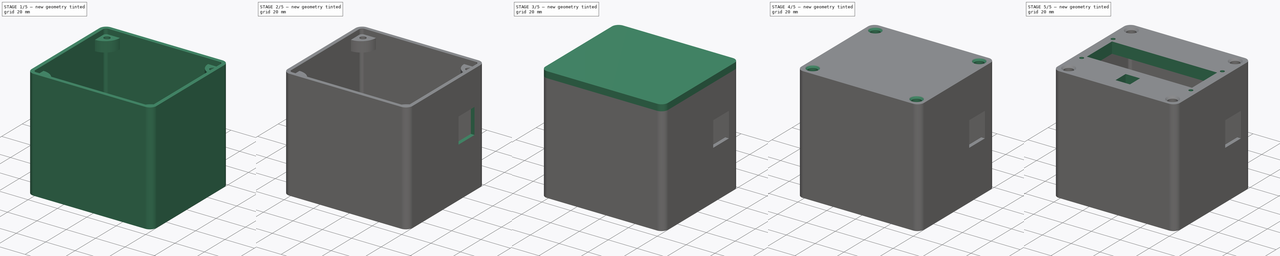
[diagram: build sequence overview — one tinted view per stage of 5, left to right]
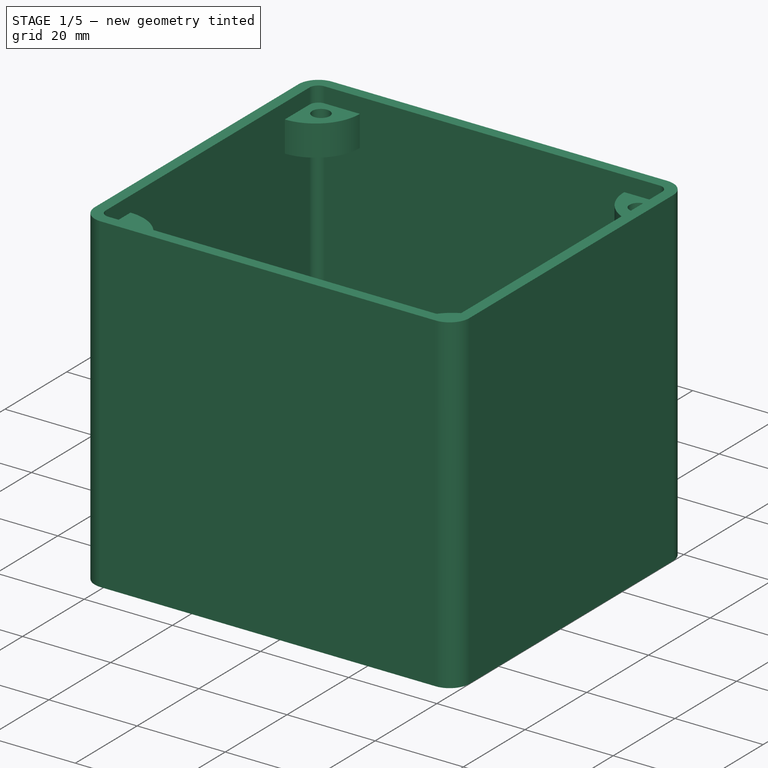
[diagram: stage 1 of 5 — iso view after this stage's code; geometry added in this stage tinted green]
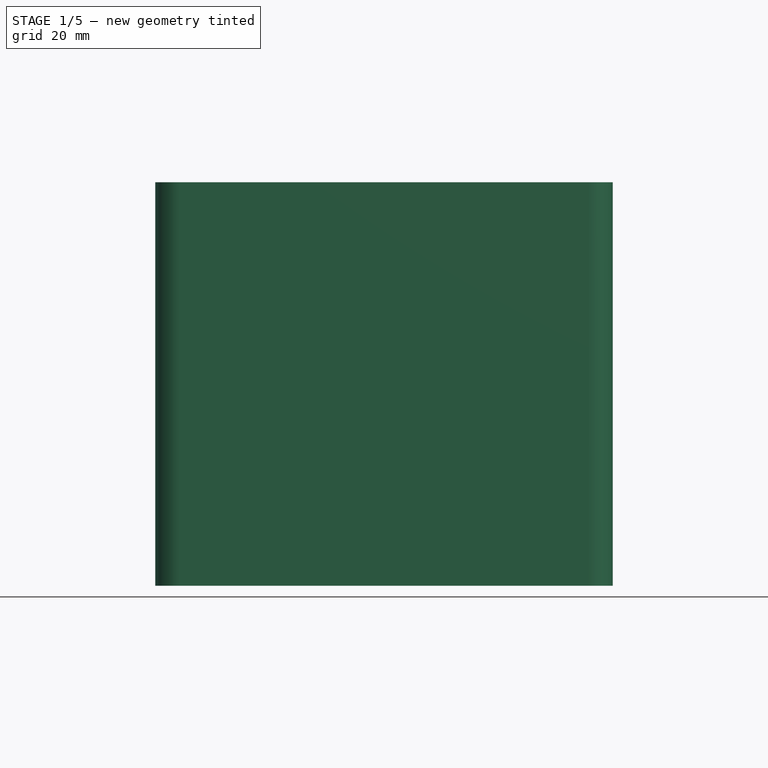
[diagram: stage 1 of 5 — front view after this stage's code; geometry added in this stage tinted green]
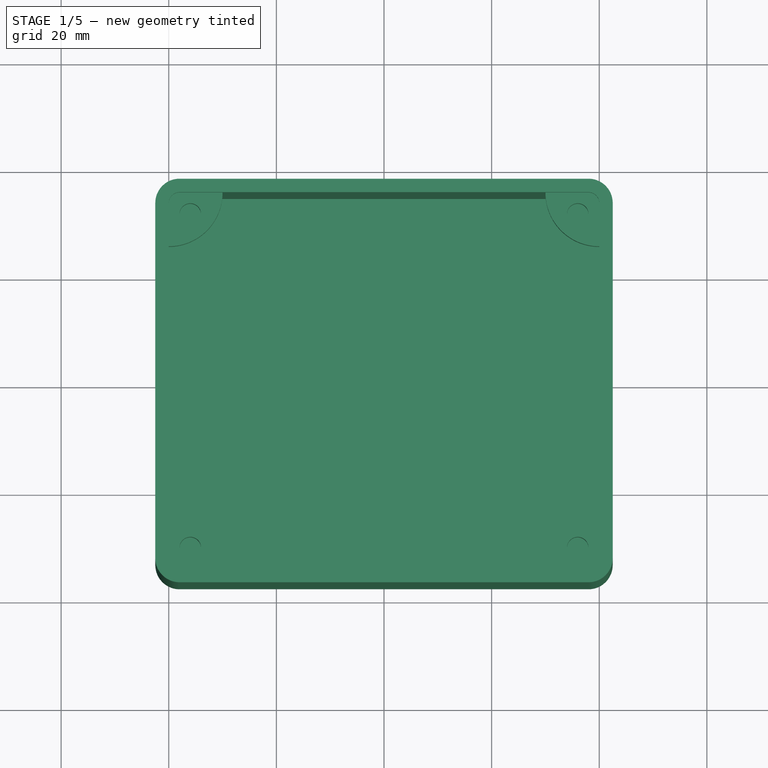
[diagram: stage 1 of 5 — top view after this stage's code; geometry added in this stage tinted green]
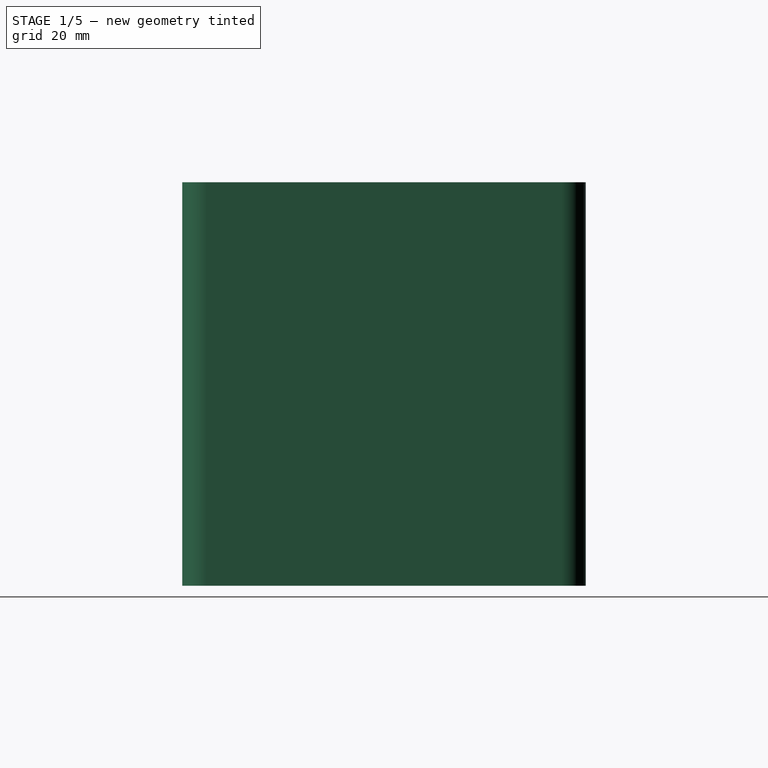
[diagram: stage 1 of 5 — right view after this stage's code; geometry added in this stage tinted green]
FCSTD DOCUMENT  (FreeCAD 0.19R24291 (Git))
Label: name_change
License: All rights reserved
LicenseURL: http://en.wikipedia.org/wiki/All_rights_reserved
objects: Sketcher::SketchObject×15, PartDesign::Pocket×10, App::MeasureDistance×9, PartDesign::Mirrored×6, PartDesign::Pad×4, PartDesign::MultiTransform×3, PartDesign::Body×2, Spreadsheet::Sheet×1, PartDesign::Chamfer×1, App::Part×1
note: 56 computed .brp shape members not serialized (recipe doc carries the construction recipe); baked Part::Feature solids carry a one-line shape summary decoded from their .brp

FEATURE [Sketcher::SketchObject] Sketch
  AttachmentOffset = pos=(0,0,-2.5) rot=(0,0,1;0rad)
  FullyConstrained = true
  MapMode = 5
  Placement = pos=(0,0,-2.5) rot=(0,0,1;0rad)
  Support = -> [XY_Plane001]
  expr: Constraints[17] = Spreadsheet.box_length
  expr: Constraints[18] = Spreadsheet.box_width
  expr: Constraints[16] = Spreadsheet.outside_radius
  expr: .AttachmentOffset.Base.z = -Spreadsheet.box_wall_thickness
  sketch-geometry (8):
    g0: LineSegment StartX=-38 StartY=37.5 StartZ=0 EndX=38 EndY=37.5 EndZ=0
    g1: LineSegment StartX=42.5 StartY=33 StartZ=0 EndX=42.5 EndY=-33 EndZ=0
    g2: LineSegment StartX=38 StartY=-37.5 StartZ=0 EndX=-38 EndY=-37.5 EndZ=0
    g3: LineSegment StartX=-42.5 StartY=-33 StartZ=0 EndX=-42.5 EndY=33 EndZ=0
    g4: ArcOfCircle CenterX=-38 CenterY=33 CenterZ=0 NormalX=0 NormalY=0 NormalZ=1 AngleXU=0 Radius=4.5 StartAngle=1.5708 EndAngle=3.14159
    g5: ArcOfCircle CenterX=-38 CenterY=-33 CenterZ=0 NormalX=0 NormalY=0 NormalZ=1 AngleXU=0 Radius=4.5 StartAngle=3.14159 EndAngle=4.71239
    g6: ArcOfCircle CenterX=38 CenterY=-33 CenterZ=0 NormalX=0 NormalY=0 NormalZ=1 AngleXU=0 Radius=4.5 StartAngle=4.71239 EndAngle=6.28319
    g7: ArcOfCircle CenterX=38 CenterY=33 CenterZ=0 NormalX=0 NormalY=0 NormalZ=1 AngleXU=0 Radius=4.5 StartAngle=-9e-16 EndAngle=1.5708
  constraints (19):
    c: Horizontal(g0)
    c: Horizontal(g2)
    c: Vertical(g1)
    c: Vertical(g3)
    c: Tangent(g0,g4) = 1.5708
    c: Tangent(g3,g4) = 1.5708
    c: Tangent(g2,g5) = 1.5708
    c: Tangent(g3,g5) = 1.5708
    c: Tangent(g1,g6) = 1.5708
    c: Tangent(g2,g6) = 1.5708
    c: Tangent(g0,g7) = 1.5708
    c: Tangent(g1,g7) = 1.5708
    c: Symmetric(g4,g6,g-1)
    c: Equal(g6,g7)
    c: Equal(g7,g4)
    c: Equal(g4,g5)
    c: Radius(g4) = 4.5
    c: DistanceX(g3,g1) = 85
    c: DistanceY(g2,g0) = 75
FEATURE [PartDesign::Pad] Pad
  Direction = (1,1,1)
  Length = 75
  Length2 = 100
  Profile = -> Sketch
  Type = 0
  expr: Length = Spreadsheet.box_height
FEATURE [Spreadsheet::Sheet] Spreadsheet
  cells = A2=box_length; B2(box_length)=85; A3=box_width; B3(box_width)=75; A4=box_height; B4(box_height)=75; A5=outside_radius; B5(outside_radius)==B7 + 2; C5=Calculated; A6=inside_radius; B6(inside_radius)==B5 - B7; C6=Calculated; A7=box_wall_thickness; B7(box_wall_thickness)=2.5; A8=hole_dia; B8(hole_dia)=4; A9=lug_height; B9(lug_height)==B4 - B7 * 2 - 63; C9=Calculated; A10=lug_radius; B10(lug_radius)==B8 * 2.5; C10=Calculated; A11=hole_center_length; B11(hole_center_length)==B13 / 2 - B8; C11=Calculated; A12=hole_center_width; B12(hole_center_width)==B14 / 2 - B8; C12=Calculated; A13=box_inside_length; B13(box_inside_length)==B2 - B7 * 2; C13=Calculated; A14=box_inside_width; B14(box_inside_width)==B3 - B7 * 2; C14=Calculated; A16=clearance_sides; B16(clearance_sides)=0.2; A17=clearance_hole; B17(clearance_hole)==B8 + 2; C17=Calculated; A18=lid_height; B18(lid_height)==B4 / 17; C18=Calculated; A20=lcd_length; B20(ldc_length)=72.89; A21=lcd_width; B21(lcd_width)=24.892; A22=lcd_hole_dia; B22(lcd_hole_dia)=2.7686; A23=lcd_hole_center_length; B23(lcd_hole_center_length)=37.8587; A24=lcd_hole_center_width; B24(lcd_hole_center_width)=15.5702; A26=buzzer_dia; B26(buzzer_dia)=12; A27=RJ11_length; B27(RJ11_length)=15.494; A28=RJ11_width; B28(RJ11_width)=17.272; A30=led_dia; B30(led_dia)=6; A31=pot_size ; B31(pot_size_)=10; B33=69x52
FEATURE [Sketcher::SketchObject] Sketch001
  FullyConstrained = true
  MapMode = 5
  Support = -> [XY_Plane001]
  expr: Constraints[16] = Spreadsheet.inside_radius
  expr: Constraints[17] = Spreadsheet.box_inside_length
  expr: Constraints[18] = Spreadsheet.box_inside_width
  sketch-geometry (8):
    g0: LineSegment StartX=-38 StartY=35 StartZ=0 EndX=38 EndY=35 EndZ=0
    g1: LineSegment StartX=40 StartY=33 StartZ=0 EndX=40 EndY=-33 EndZ=0
    g2: LineSegment StartX=38 StartY=-35 StartZ=0 EndX=-38 EndY=-35 EndZ=0
    g3: LineSegment StartX=-40 StartY=-33 StartZ=0 EndX=-40 EndY=33 EndZ=0
    g4: ArcOfCircle CenterX=-38 CenterY=33 CenterZ=0 NormalX=0 NormalY=0 NormalZ=1 AngleXU=0 Radius=2 StartAngle=1.5708 EndAngle=3.14159
    g5: ArcOfCircle CenterX=-38 CenterY=-33 CenterZ=0 NormalX=0 NormalY=0 NormalZ=1 AngleXU=0 Radius=2 StartAngle=3.14159 EndAngle=4.71239
    g6: ArcOfCircle CenterX=38 CenterY=-33 CenterZ=0 NormalX=0 NormalY=0 NormalZ=1 AngleXU=0 Radius=2 StartAngle=4.71239 EndAngle=6.28319
    g7: ArcOfCircle CenterX=38 CenterY=33 CenterZ=0 NormalX=0 NormalY=0 NormalZ=1 AngleXU=0 Radius=2 StartAngle=1e-15 EndAngle=1.5708
  constraints (19):
    c: Horizontal(g0)
    c: Horizontal(g2)
    c: Vertical(g1)
    c: Vertical(g3)
    c: Tangent(g0,g4) = 1.5708
    c: Tangent(g3,g4) = 1.5708
    c: Tangent(g2,g5) = 1.5708
    c: Tangent(g3,g5) = 1.5708
    c: Tangent(g1,g6) = 1.5708
    c: Tangent(g2,g6) = 1.5708
    c: Tangent(g0,g7) = 1.5708
    c: Tangent(g1,g7) = 1.5708
    c: Symmetric(g4,g6,g-1)
    c: Equal(g4,g5)
    c: Equal(g5,g6)
    c: Equal(g6,g7)
    c: Radius(g4) = 2
    c: DistanceX(g3,g1) = 80
    c: DistanceY(g2,g0) = 70
FEATURE [PartDesign::Pocket] Pocket
  BaseFeature = -> Pad
  Length = 5
  Length2 = 100
  Profile = -> Sketch001
  Reversed = true
  Type = 1
FEATURE [Sketcher::SketchObject] Sketch002
  FullyConstrained = false
  MapMode = 5
  Support = -> [XY_Plane001]
  expr: Constraints[5] = Spreadsheet.hole_dia
  expr: Constraints[6] = Spreadsheet.lug_radius
  sketch-geometry (4):
    g0: LineSegment StartX=-93.7587 StartY=49.1953 StartZ=0 EndX=-93.3239 EndY=59.1858 EndZ=0
    g1: LineSegment StartX=-93.7587 StartY=49.1953 StartZ=0 EndX=-93.7587 EndY=39.1953 EndZ=0
    g2: ArcOfCircle CenterX=-93.7587 CenterY=49.1953 CenterZ=0 NormalX=0 NormalY=0 NormalZ=1 AngleXU=0 Radius=10 StartAngle=4.71239 EndAngle=7.81049
    g3: Circle CenterX=-91.8972 CenterY=51.6629 CenterZ=0 NormalX=0 NormalY=0 NormalZ=1 AngleXU=0 Radius=2
  constraints (7):
    c: Coincident(g1,g0)
    c: Vertical(g1)
    c: Coincident(g2,g0)
    c: Coincident(g2,g0)
    c: Coincident(g2,g1)
    c: Diameter(g3) = 4
    c: Radius(g2) = 10
FEATURE [Sketcher::SketchObject] Sketch003
  AttachmentOffset = pos=(0,0,62) rot=(0,0,1;0rad)
  FullyConstrained = true
  MapMode = 5
  Placement = pos=(0,0,62) rot=(0,0,1;0rad)
  Support = -> [XY_Plane001]
  expr: Constraints[6] = Spreadsheet.hole_dia
  expr: Constraints[7] = Spreadsheet.lug_radius
  expr: Constraints[8] = Spreadsheet.hole_dia
  expr: Constraints[9] = Spreadsheet.hole_dia
  expr: Constraints[10] = Spreadsheet.hole_center_length
  expr: Constraints[11] = Spreadsheet.hole_center_width
  sketch-geometry (4):
    g0: LineSegment StartX=-40 StartY=35 StartZ=0 EndX=-30 EndY=35 EndZ=0
    g1: LineSegment StartX=-40 StartY=35 StartZ=0 EndX=-40 EndY=25 EndZ=0
    g2: ArcOfCircle CenterX=-40 CenterY=35 CenterZ=0 NormalX=0 NormalY=0 NormalZ=1 AngleXU=0 Radius=10 StartAngle=4.71239 EndAngle=6.28319
    g3: Circle CenterX=-36 CenterY=31 CenterZ=0 NormalX=0 NormalY=0 NormalZ=1 AngleXU=0 Radius=2
  constraints (12):
    c: Horizontal(g0)
    c: Coincident(g1,g0)
    c: Vertical(g1)
    c: Coincident(g2,g0)
    c: Coincident(g2,g0)
    c: Coincident(g2,g1)
    c: Diameter(g3) = 4
    c: Radius(g2) = 10
    c: DistanceY(g3,g0) = 4
    c: DistanceX(g0,g3) = 4
    c: DistanceX(g3,g-1) = 36
    c: DistanceY(g-1,g3) = 31
FEATURE [PartDesign::Pad] Pad001
  BaseFeature = -> Pocket
  Direction = (1,1,1)
  Length = 7
  Length2 = 100
  Profile = -> Sketch003
  Type = 0
  expr: Length = Spreadsheet.lug_height
FEATURE [PartDesign::Mirrored] Mirrored
  MirrorPlane = -> Sketch003 [V_Axis]
FEATURE [PartDesign::Mirrored] Mirrored001
  MirrorPlane = -> Sketch003 [H_Axis]
FEATURE [PartDesign::MultiTransform] MultiTransform
  BaseFeature = -> Pad001
  Originals = -> [Pad001]
  Transformations = -> [Mirrored,Mirrored001]
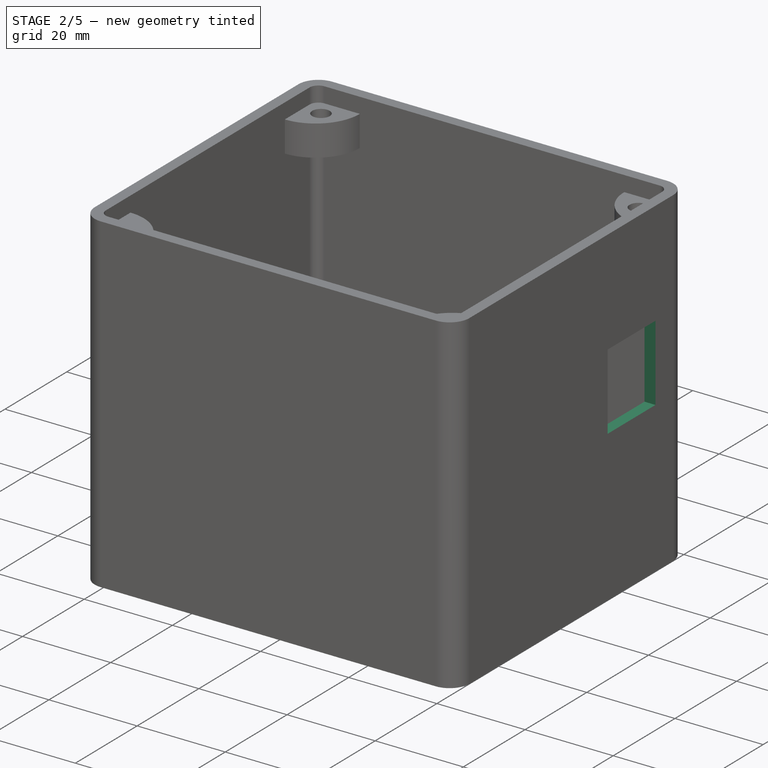
[diagram: stage 2 of 5 — iso view after this stage's code; geometry added in this stage tinted green]
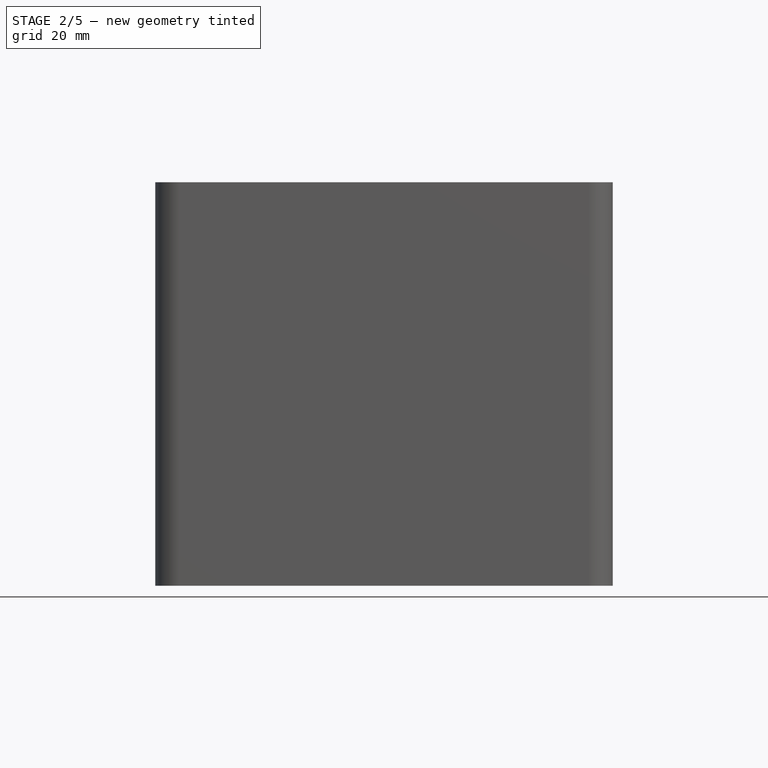
[diagram: stage 2 of 5 — front view after this stage's code; geometry added in this stage tinted green]
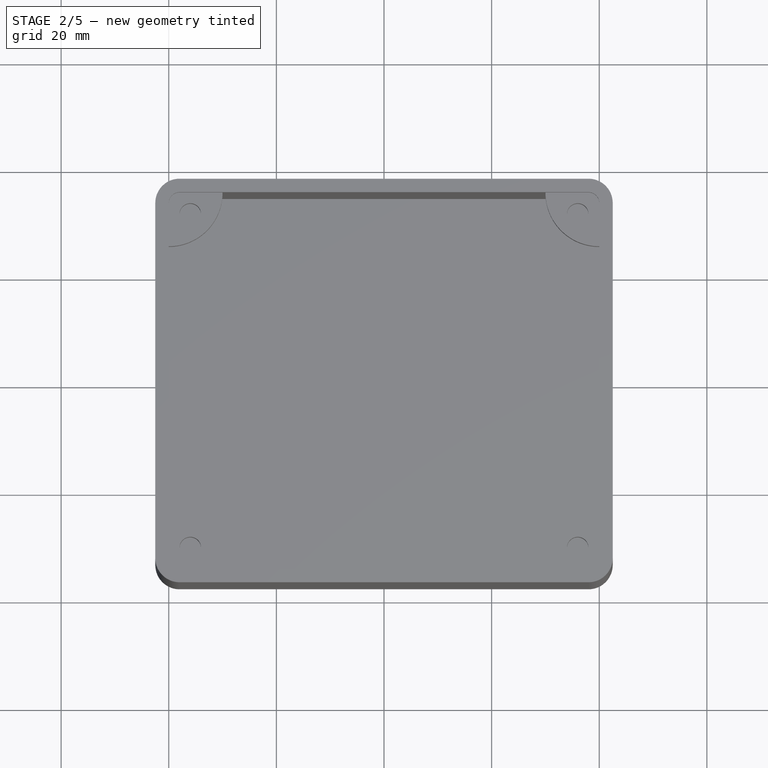
[diagram: stage 2 of 5 — top view after this stage's code; geometry added in this stage tinted green]
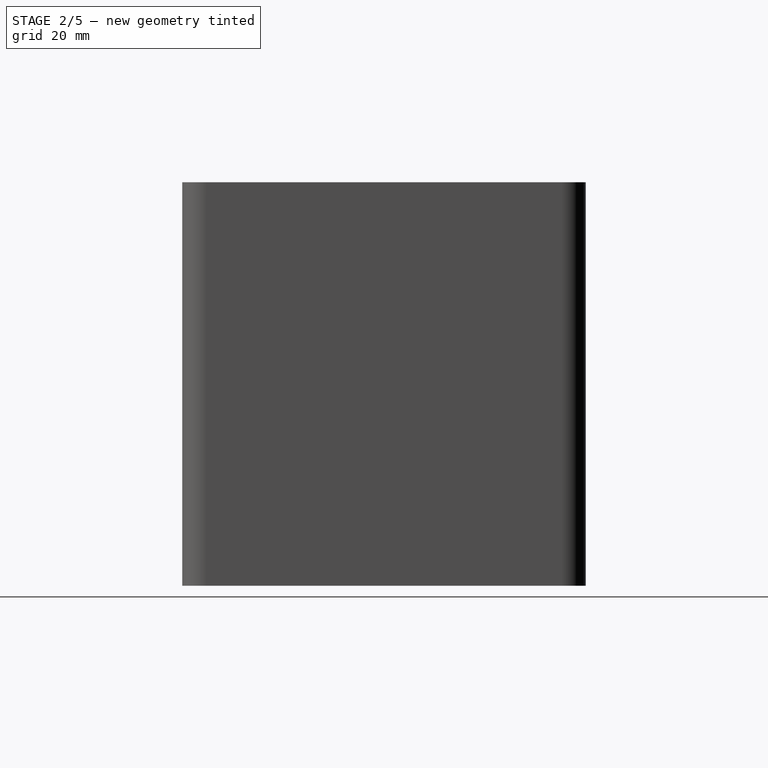
[diagram: stage 2 of 5 — right view after this stage's code; geometry added in this stage tinted green]
FEATURE [PartDesign::Body] Body001  label="Lid"
  Group = -> [Sketch004,Pad002,Sketch005,Pad003,Sketch006,Pocket001,MultiTransform001,Mirrored002,Mirrored003,Chamfer,Sketch007,Pocket002,Sketch008,Pocket003,MultiTransform002,Mirrored004,Mirrored005,Sketch009,Pocket004]
  Origin = -> Origin002
  Tip = -> Pocket004
FEATURE [Sketcher::SketchObject] Sketch010
  FullyConstrained = false
  MapMode = 5
  Placement = pos=(0,0,0) rot=(0.57735,0.57735,0.57735;2.0944rad)
  Support = -> [YZ_Plane001]
  expr: Constraints[9] = Spreadsheet.RJ11_width
  expr: Constraints[8] = Spreadsheet.RJ11_length
  sketch-geometry (4):
    g0: LineSegment StartX=11.7695 StartY=48.9346 StartZ=0 EndX=27.2635 EndY=48.9346 EndZ=0
    g1: LineSegment StartX=27.2635 StartY=48.9346 StartZ=0 EndX=27.2635 EndY=31.6626 EndZ=0
    g2: LineSegment StartX=27.2635 StartY=31.6626 StartZ=0 EndX=11.7695 EndY=31.6626 EndZ=0
    g3: LineSegment StartX=11.7695 StartY=31.6626 StartZ=0 EndX=11.7695 EndY=48.9346 EndZ=0
  constraints (10):
    c: Coincident(g0,g1)
    c: Coincident(g1,g2)
    c: Coincident(g2,g3)
    c: Coincident(g3,g0)
    c: Horizontal(g0)
    c: Horizontal(g2)
    c: Vertical(g1)
    c: Vertical(g3)
    c: DistanceX(g2,g2) = 15.494
    c: DistanceY(g1,g1) = 17.272
FEATURE [PartDesign::Pocket] Pocket005  label="RJ11"
  BaseFeature = -> MultiTransform
  Length = 5
  Length2 = 100
  Profile = -> Sketch010
  Reversed = true
  Type = 1
FEATURE [Sketcher::SketchObject] Sketch011
  FullyConstrained = false
  MapMode = 5
  Placement = pos=(0,0,0) rot=(0.57735,0.57735,0.57735;2.0944rad)
  Support = -> [YZ_Plane001]
  expr: Constraints[0] = Spreadsheet.buzzer_dia
  sketch-geometry (1):
    g0: Circle CenterX=-19.8828 CenterY=16.0196 CenterZ=0 NormalX=0 NormalY=0 NormalZ=1 AngleXU=0 Radius=6
  constraints (1):
    c: Diameter(g0) = 12
FEATURE [PartDesign::Pocket] Pocket006  label="Buzzer"
  BaseFeature = -> Pocket005
  Length = 5
  Length2 = 100
  Profile = -> Sketch011
  Type = 1
FEATURE [Sketcher::SketchObject] Sketch012
  FullyConstrained = false
  MapMode = 5
  Placement = pos=(0,0,0) rot=(0.57735,0.57735,0.57735;2.0944rad)
  Support = -> [YZ_Plane001]
  expr: Constraints[0] = Spreadsheet.led_dia
  sketch-geometry (1):
    g0: Circle CenterX=-2.87164 CenterY=20.9837 CenterZ=0 NormalX=0 NormalY=0 NormalZ=1 AngleXU=0 Radius=3
  constraints (1):
    c: Diameter(g0) = 6
FEATURE [PartDesign::Pocket] Pocket007  label="LED"
  BaseFeature = -> Pocket006
  Length = 5
  Length2 = 100
  Profile = -> Sketch012
  Type = 1
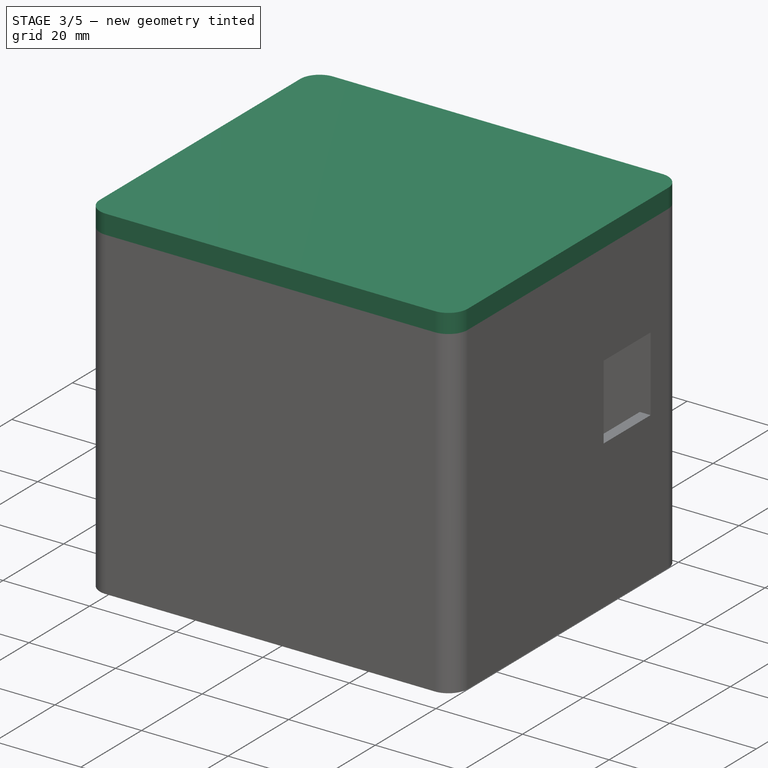
[diagram: stage 3 of 5 — iso view after this stage's code; geometry added in this stage tinted green]
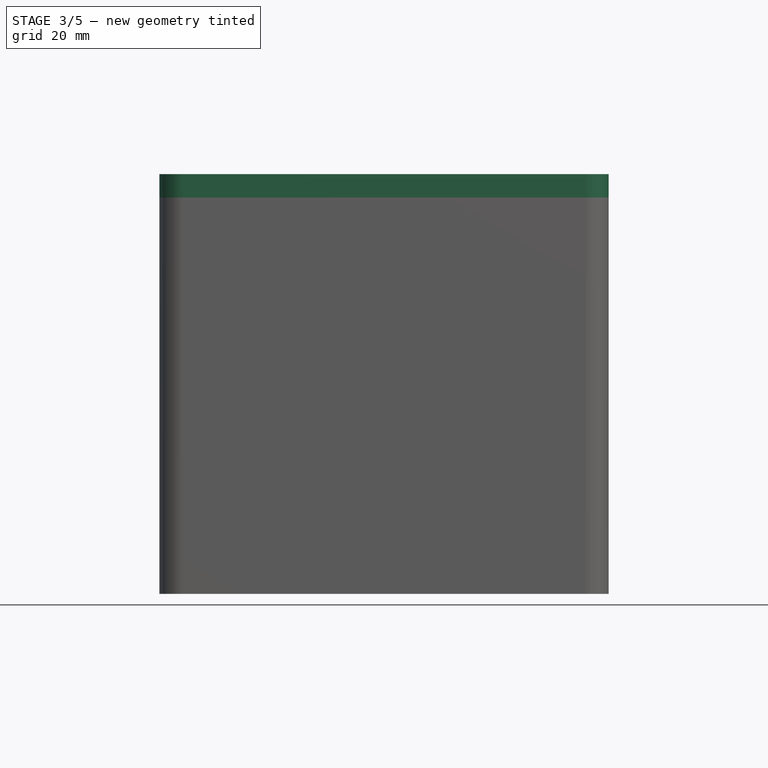
[diagram: stage 3 of 5 — front view after this stage's code; geometry added in this stage tinted green]
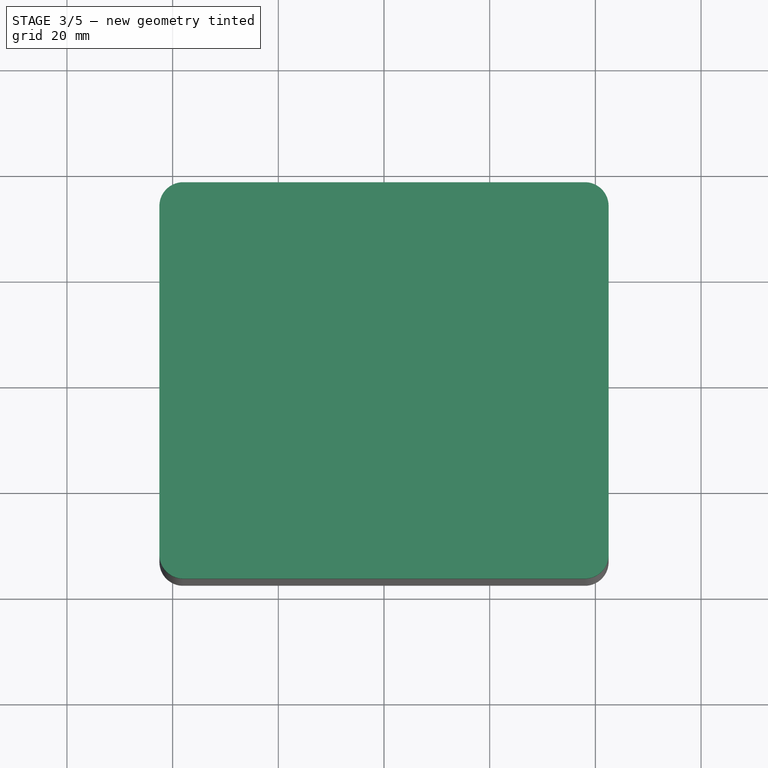
[diagram: stage 3 of 5 — top view after this stage's code; geometry added in this stage tinted green]
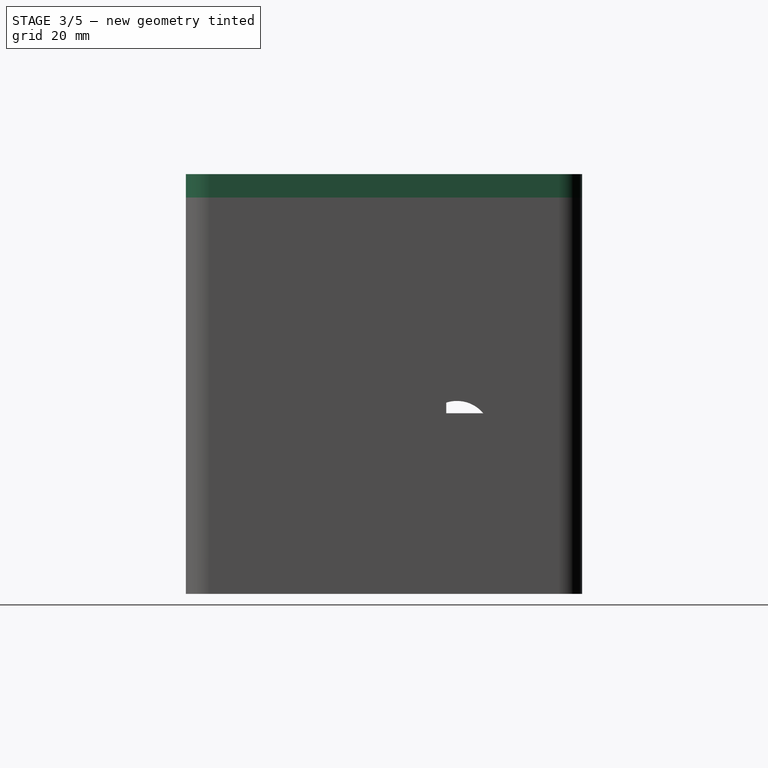
[diagram: stage 3 of 5 — right view after this stage's code; geometry added in this stage tinted green]
FEATURE [Sketcher::SketchObject] Sketch004
  AttachmentOffset = pos=(0,0,72.5) rot=(0,0,1;0rad)
  FullyConstrained = true
  MapMode = 5
  Placement = pos=(0,0,72.5) rot=(0,0,1;0rad)
  Support = -> [XY_Plane002]
  expr: Constraints[16] = Spreadsheet.outside_radius
  expr: Constraints[17] = Spreadsheet.box_width
  expr: Constraints[18] = Spreadsheet.box_length
  expr: .AttachmentOffset.Base.z = Spreadsheet.box_height - Spreadsheet.box_wall_thickness
  sketch-geometry (8):
    g0: LineSegment StartX=-38 StartY=37.5 StartZ=0 EndX=38 EndY=37.5 EndZ=0
    g1: LineSegment StartX=42.5 StartY=33 StartZ=0 EndX=42.5 EndY=-33 EndZ=0
    g2: LineSegment StartX=38 StartY=-37.5 StartZ=0 EndX=-38 EndY=-37.5 EndZ=0
    g3: LineSegment StartX=-42.5 StartY=-33 StartZ=0 EndX=-42.5 EndY=33 EndZ=0
    g4: ArcOfCircle CenterX=-38 CenterY=33 CenterZ=0 NormalX=0 NormalY=0 NormalZ=1 AngleXU=0 Radius=4.5 StartAngle=1.5708 EndAngle=3.14159
    g5: ArcOfCircle CenterX=-38 CenterY=-33 CenterZ=0 NormalX=0 NormalY=0 NormalZ=1 AngleXU=0 Radius=4.5 StartAngle=3.14159 EndAngle=4.71239
    g6: ArcOfCircle CenterX=38 CenterY=-33 CenterZ=0 NormalX=0 NormalY=0 NormalZ=1 AngleXU=0 Radius=4.5 StartAngle=4.71239 EndAngle=6.28319
    g7: ArcOfCircle CenterX=38 CenterY=33 CenterZ=0 NormalX=0 NormalY=0 NormalZ=1 AngleXU=0 Radius=4.5 StartAngle=3e-16 EndAngle=1.5708
  constraints (19):
    c: Horizontal(g0)
    c: Horizontal(g2)
    c: Vertical(g1)
    c: Vertical(g3)
    c: Tangent(g0,g4) = 1.5708
    c: Tangent(g3,g4) = 1.5708
    c: Tangent(g3,g5) = 1.5708
    c: Tangent(g2,g5) = 1.5708
    c: Tangent(g1,g6) = 1.5708
    c: Tangent(g2,g6) = 1.5708
    c: Tangent(g0,g7) = 1.5708
    c: Tangent(g1,g7) = 1.5708
    c: Symmetric(g4,g6,g-1)
    c: Equal(g4,g5)
    c: Equal(g5,g7)
    c: Equal(g7,g6)
    c: Radius(g4) = 4.5
    c: DistanceY(g2,g0) = 75
    c: DistanceX(g3,g1) = 85
FEATURE [PartDesign::Pad] Pad002
  Direction = (1,1,1)
  Length = 4.41176
  Length2 = 100
  Profile = -> Sketch004
  Type = 0
  expr: Length = Spreadsheet.lid_height
FEATURE [Sketcher::SketchObject] Sketch005
  AttachmentOffset = pos=(0,0,72.5) rot=(0,0,1;0rad)
  FullyConstrained = true
  MapMode = 5
  Placement = pos=(0,0,72.5) rot=(0,0,1;0rad)
  Support = -> [XY_Plane002]
  expr: Constraints[16] = Spreadsheet.inside_radius
  expr: Constraints[17] = Spreadsheet.box_inside_width - Spreadsheet.clearance_sides * 2
  expr: Constraints[18] = Spreadsheet.box_inside_length - Spreadsheet.clearance_sides * 2
  expr: .AttachmentOffset.Base.z = Spreadsheet.box_height - Spreadsheet.box_wall_thickness
  sketch-geometry (8):
    g0: LineSegment StartX=-37.8 StartY=34.8 StartZ=0 EndX=37.8 EndY=34.8 EndZ=0
    g1: LineSegment StartX=39.8 StartY=32.8 StartZ=0 EndX=39.8 EndY=-32.8 EndZ=0
    g2: LineSegment StartX=37.8 StartY=-34.8 StartZ=0 EndX=-37.8 EndY=-34.8 EndZ=0
    g3: LineSegment StartX=-39.8 StartY=-32.8 StartZ=0 EndX=-39.8 EndY=32.8 EndZ=0
    g4: ArcOfCircle CenterX=-37.8 CenterY=32.8 CenterZ=0 NormalX=0 NormalY=0 NormalZ=1 AngleXU=0 Radius=2 StartAngle=1.5708 EndAngle=3.14159
    g5: ArcOfCircle CenterX=-37.8 CenterY=-32.8 CenterZ=0 NormalX=0 NormalY=0 NormalZ=1 AngleXU=0 Radius=2 StartAngle=3.14159 EndAngle=4.71239
    g6: ArcOfCircle CenterX=37.8 CenterY=32.8 CenterZ=0 NormalX=0 NormalY=0 NormalZ=1 AngleXU=0 Radius=2 StartAngle=2.5e-15 EndAngle=1.5708
    g7: ArcOfCircle CenterX=37.8 CenterY=-32.8 CenterZ=0 NormalX=0 NormalY=0 NormalZ=1 AngleXU=0 Radius=2 StartAngle=4.71239 EndAngle=6.28319
  constraints (19):
    c: Horizontal(g0)
    c: Horizontal(g2)
    c: Vertical(g1)
    c: Vertical(g3)
    c: Tangent(g0,g4) = 1.5708
    c: Tangent(g3,g4) = 1.5708
    c: Tangent(g2,g5) = 1.5708
    c: Tangent(g3,g5) = 1.5708
    c: Tangent(g0,g6) = 1.5708
    c: Tangent(g1,g6) = 1.5708
    c: Tangent(g2,g7) = 1.5708
    c: Tangent(g1,g7) = 1.5708
    c: Symmetric(g4,g7,g-1)
    c: Equal(g4,g6)
    c: Equal(g6,g7)
    c: Equal(g7,g5)
    c: Radius(g4) = 2
    c: DistanceY(g2,g0) = 69.6
    c: DistanceX(g3,g1) = 79.6
FEATURE [PartDesign::Pad] Pad003
  BaseFeature = -> Pad002
  Direction = (1,1,1)
  Length = 3.3
  Length2 = 100
  Profile = -> Sketch005
  Reversed = true
  Type = 0
  expr: Length = Spreadsheet.box_wall_thickness - Spreadsheet.clearance_sides + 1
FEATURE [Sketcher::SketchObject] Sketch013
  FullyConstrained = false
  MapMode = 5
  Placement = pos=(0,0,0) rot=(0.57735,0.57735,0.57735;2.0944rad)
  Support = -> [YZ_Plane001]
  sketch-geometry (5):
    g0: GeomPoint X=43.9969 Y=0 Z=0
    g1: GeomPoint X=-43.9998 Y=0 Z=0
    g2: GeomPoint X=31.2986 Y=0 Z=0
    g3: GeomPoint X=-30.0236 Y=0 Z=0
    g4: Circle CenterX=13.7986 CenterY=27.5 CenterZ=0 NormalX=0 NormalY=0 NormalZ=1 AngleXU=0 Radius=6.5
  constraints (7):
    c: PointOnObject(g0,g-1)
    c: PointOnObject(g1,g-1)
    c: PointOnObject(g3,g-1)
    c: PointOnObject(g2,g-1)
    c: Distance(g4,g-1) = 27.5
    c: Diameter(g4) = 13
    c: DistanceX(g4,g2) = 17.5
FEATURE [PartDesign::Pocket] Pocket008  label="BNC"
  BaseFeature = -> Pocket007
  Length = 5
  Length2 = 100
  Profile = -> Sketch013
  Type = 1
FEATURE [Sketcher::SketchObject] Sketch014
  FullyConstrained = false
  MapMode = 5
  Placement = pos=(0,0,0) rot=(0.57735,0.57735,0.57735;2.0944rad)
  Support = -> [YZ_Plane001]
  sketch-geometry (4):
    g0: LineSegment StartX=6.29164 StartY=0 StartZ=0 EndX=21.2916 EndY=0 EndZ=0
    g1: LineSegment StartX=21.2916 StartY=0 StartZ=0 EndX=21.2916 EndY=15 EndZ=0
    g2: LineSegment StartX=21.2916 StartY=15 StartZ=0 EndX=6.29164 EndY=15 EndZ=0
    g3: LineSegment StartX=6.29164 StartY=15 StartZ=0 EndX=6.29164 EndY=0 EndZ=0
  constraints (11):
    c: Coincident(g0,g1)
    c: Coincident(g1,g2)
    c: Coincident(g2,g3)
    c: Coincident(g3,g0)
    c: Horizontal(g0)
    c: Horizontal(g2)
    c: Vertical(g1)
    c: Vertical(g3)
    c: PointOnObject(g0,g-1)
    c: DistanceX(g0,g0) = 15
    c: DistanceY(g1,g1) = 15
FEATURE [PartDesign::Pocket] Pocket009  label="Arduino"
  BaseFeature = -> Pocket008
  Length = 5
  Length2 = 100
  Profile = -> Sketch014
  Type = 1
FEATURE [PartDesign::Body] Body  label="Box"
  Group = -> [Sketch,Pad,Sketch001,Pocket,Sketch002,Sketch003,Pad001,MultiTransform,Mirrored,Mirrored001,Sketch010,Pocket005,Sketch011,Pocket006,Sketch012,Pocket007,Sketch013,Pocket008,Sketch014,Pocket009]
  Origin = -> Origin001
  Tip = -> Pocket009
FEATURE [App::Part] Part
  Group = -> [Body,Body001]
  Origin = -> Origin
FEATURE [App::MeasureDistance] Distance  label="Distance: 9.08 mm"
  Distance = 9.07687
  P1 = (-6.25056,12.446,80.25)
  P2 = (-2.05688,12.446,72.2)
FEATURE [App::MeasureDistance] Distance001  label="Distance: 8.14 mm"
  Distance = 8.14141
  P1 = (-39.5,-37.5,80.25)
  P2 = (-39.3,-36.3,72.2)
FEATURE [App::MeasureDistance] Distance002  label="Distance: 8.15 mm"
  Distance = 8.14928
  P1 = (-27.9012,-37.5,80.25)
  P2 = (-27.4911,-36.3,72.2)
FEATURE [App::MeasureDistance] Distance003  label="Distance: 5.36 mm"
  Distance = 5.35714
  P1 = (-42.5,34.5,79.3571)
  P2 = (-42.5,34.5,74)
FEATURE [App::MeasureDistance] Distance004  label="Distance: 7.26 mm"
  Distance = 7.2598
  P1 = (-42.5,34.5,79.3571)
  P2 = (-41.3,34.3,72.2)
FEATURE [App::MeasureDistance] Distance005  label="Distance: 7.26 mm001"
  Distance = 7.26443
  P1 = (-42.5,24.2132,79.3571)
  P2 = (-41.3,23.8857,72.2)
FEATURE [App::MeasureDistance] Distance006  label="Distance: 2.16 mm"
  Distance = 2.16334
  P1 = (-42.5,-34.3032,74)
  P2 = (-41.3,-34.3,72.2)
FEATURE [App::MeasureDistance] Distance007  label="Distance: 4.69 mm"
  Distance = 4.6875
  P1 = (-42.5,34.5,78.6875)
  P2 = (-42.5,34.5,74)
FEATURE [App::MeasureDistance] Distance008  label="Distance: 4.41 mm"
  Distance = 4.41177
  P1 = (-42.5,34.5,78.4118)
  P2 = (-42.5,34.5,74)
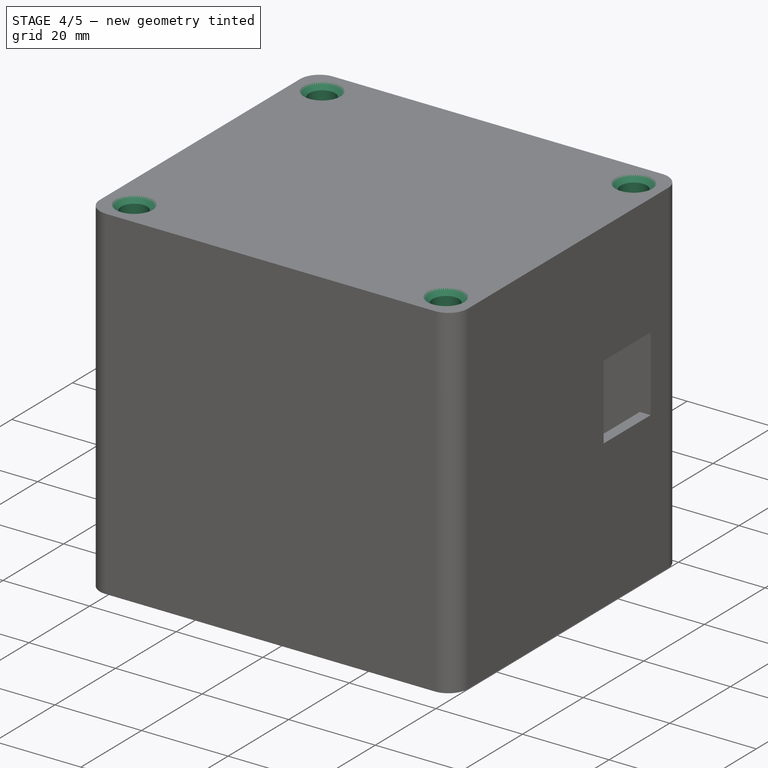
[diagram: stage 4 of 5 — iso view after this stage's code; geometry added in this stage tinted green]
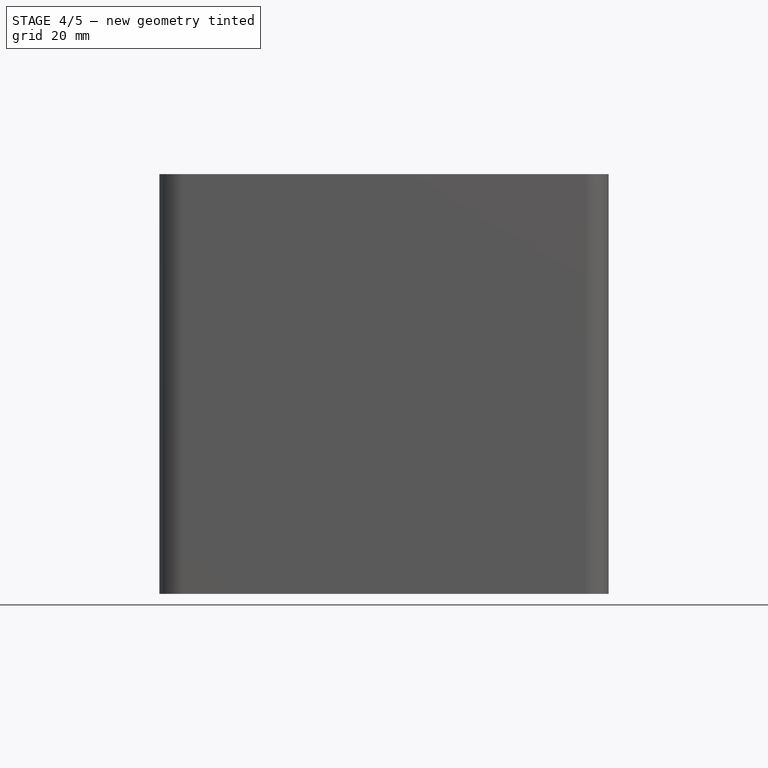
[diagram: stage 4 of 5 — front view after this stage's code; geometry added in this stage tinted green]
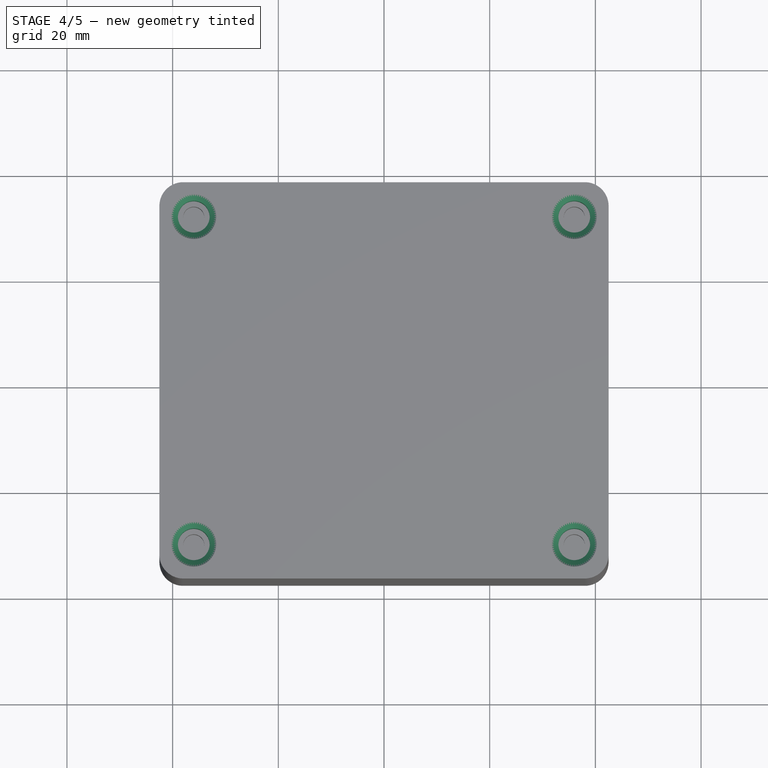
[diagram: stage 4 of 5 — top view after this stage's code; geometry added in this stage tinted green]
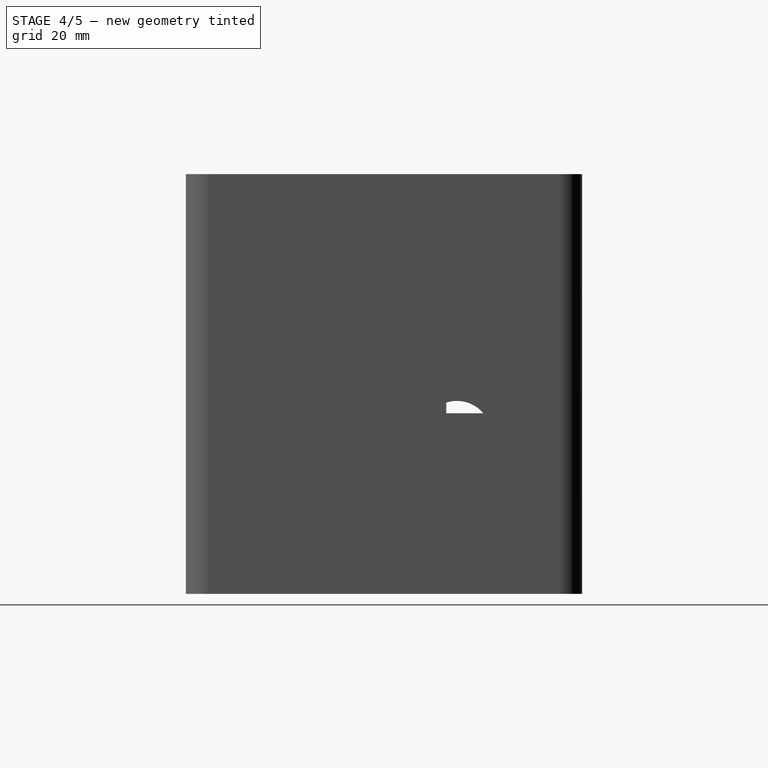
[diagram: stage 4 of 5 — right view after this stage's code; geometry added in this stage tinted green]
FEATURE [Sketcher::SketchObject] Sketch006
  FullyConstrained = true
  MapMode = 5
  Support = -> [XY_Plane002]
  expr: Constraints[0] = Spreadsheet.clearance_hole
  expr: Constraints[1] = Spreadsheet.hole_center_length
  expr: Constraints[2] = Spreadsheet.hole_center_width
  sketch-geometry (1):
    g0: Circle CenterX=-36 CenterY=31 CenterZ=0 NormalX=0 NormalY=0 NormalZ=1 AngleXU=0 Radius=3
  constraints (3):
    c: Diameter(g0) = 6
    c: DistanceX(g0,g-1) = 36
    c: DistanceY(g-1,g0) = 31
FEATURE [PartDesign::Pocket] Pocket001
  BaseFeature = -> Pad003
  Length = 5
  Length2 = 100
  Profile = -> Sketch006
  Reversed = true
  Type = 1
FEATURE [PartDesign::Mirrored] Mirrored002
  MirrorPlane = -> XZ_Plane002
FEATURE [PartDesign::Mirrored] Mirrored003
  MirrorPlane = -> YZ_Plane002
FEATURE [PartDesign::MultiTransform] MultiTransform001
  BaseFeature = -> Pocket001
  Originals = -> [Pocket001]
  Transformations = -> [Mirrored002,Mirrored003]
FEATURE [PartDesign::Chamfer] Chamfer
  Angle = 45
  Base = -> MultiTransform001 [Edge32,Edge31,Edge29,Edge30]
  BaseFeature = -> MultiTransform001
  ChamferType = 0
  FlipDirection = false
  Size = 1.25
  Size2 = 1
  SupportTransform = false
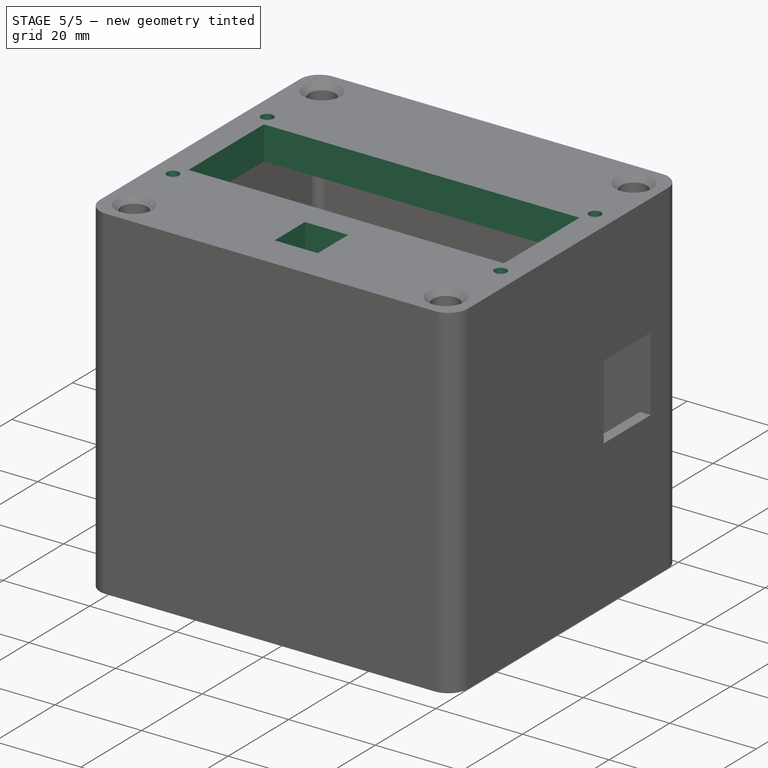
[diagram: stage 5 of 5 — iso view after this stage's code; geometry added in this stage tinted green]
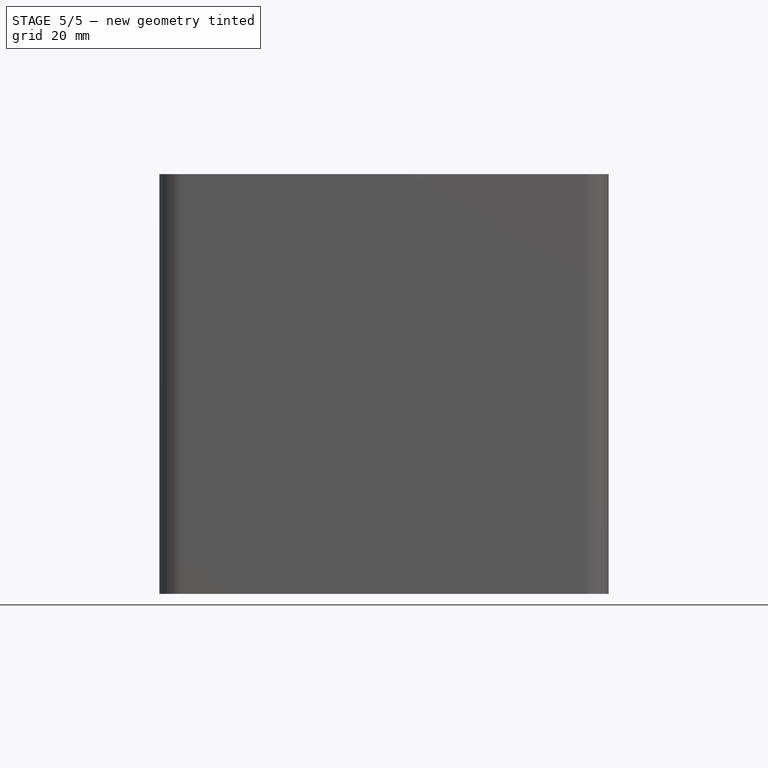
[diagram: stage 5 of 5 — front view after this stage's code; geometry added in this stage tinted green]
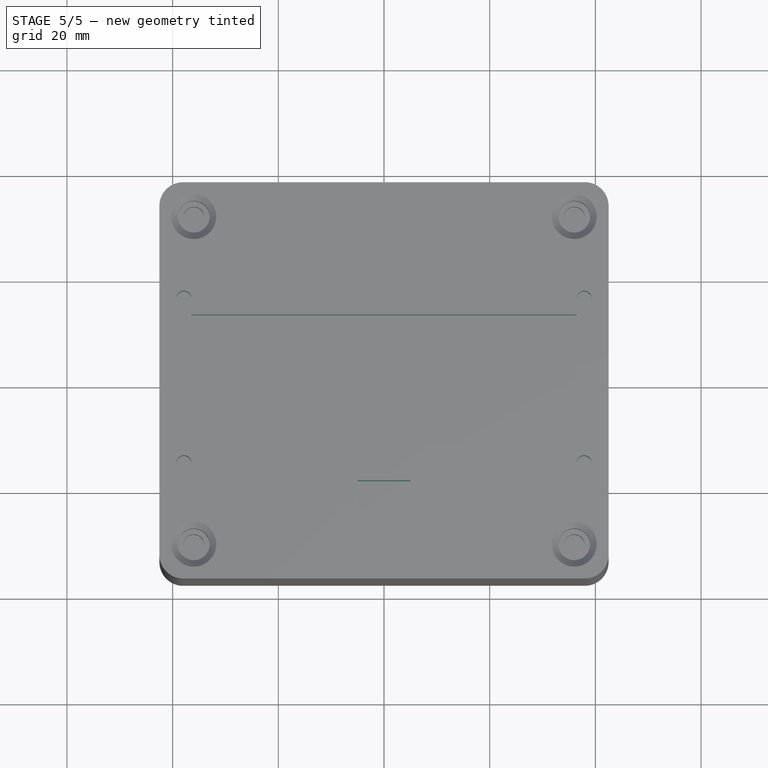
[diagram: stage 5 of 5 — top view after this stage's code; geometry added in this stage tinted green]
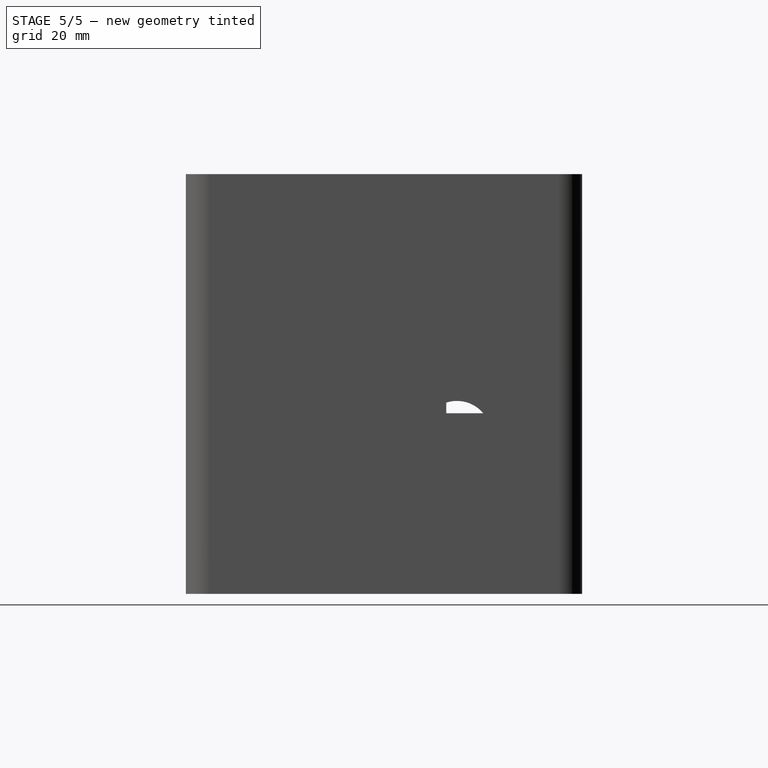
[diagram: stage 5 of 5 — right view after this stage's code; geometry added in this stage tinted green]
FEATURE [Sketcher::SketchObject] Sketch007
  FullyConstrained = true
  MapMode = 5
  Support = -> [XY_Plane002]
  expr: Constraints[9] = Spreadsheet.lcd_width
  expr: Constraints[10] = Spreadsheet.ldc_length
  sketch-geometry (4):
    g0: LineSegment StartX=-36.445 StartY=12.446 StartZ=0 EndX=36.445 EndY=12.446 EndZ=0
    g1: LineSegment StartX=36.445 StartY=12.446 StartZ=0 EndX=36.445 EndY=-12.446 EndZ=0
    g2: LineSegment StartX=36.445 StartY=-12.446 StartZ=0 EndX=-36.445 EndY=-12.446 EndZ=0
    g3: LineSegment StartX=-36.445 StartY=-12.446 StartZ=0 EndX=-36.445 EndY=12.446 EndZ=0
  constraints (11):
    c: Coincident(g0,g1)
    c: Coincident(g1,g2)
    c: Coincident(g2,g3)
    c: Coincident(g3,g0)
    c: Horizontal(g0)
    c: Horizontal(g2)
    c: Vertical(g1)
    c: Vertical(g3)
    c: Symmetric(g0,g1,g-1)
    c: DistanceY(g3,g3) = 24.892
    c: DistanceX(g0,g0) = 72.89
FEATURE [PartDesign::Pocket] Pocket002
  BaseFeature = -> Chamfer
  Length = 5
  Length2 = 100
  Profile = -> Sketch007
  Reversed = true
  Type = 1
FEATURE [Sketcher::SketchObject] Sketch008
  FullyConstrained = true
  MapMode = 5
  Support = -> [XY_Plane002]
  expr: Constraints[0] = Spreadsheet.lcd_hole_dia
  expr: Constraints[1] = Spreadsheet.lcd_hole_center_length
  expr: Constraints[2] = Spreadsheet.lcd_hole_center_width
  sketch-geometry (1):
    g0: Circle CenterX=-37.8587 CenterY=15.5702 CenterZ=0 NormalX=0 NormalY=0 NormalZ=1 AngleXU=0 Radius=1.3843
  constraints (3):
    c: Diameter(g0) = 2.7686
    c: DistanceX(g0,g-1) = 37.8587
    c: DistanceY(g-1,g0) = 15.5702
FEATURE [PartDesign::Pocket] Pocket003
  BaseFeature = -> Pocket002
  Length = 5
  Length2 = 100
  Profile = -> Sketch008
  Reversed = true
  Type = 1
FEATURE [PartDesign::Mirrored] Mirrored004
  MirrorPlane = -> XZ_Plane002
FEATURE [PartDesign::Mirrored] Mirrored005
  MirrorPlane = -> YZ_Plane002
FEATURE [PartDesign::MultiTransform] MultiTransform002
  BaseFeature = -> Pocket003
  Originals = -> [Pocket003]
  Transformations = -> [Mirrored004,Mirrored005]
FEATURE [Sketcher::SketchObject] Sketch009
  FullyConstrained = false
  MapMode = 5
  Support = -> [XY_Plane002]
  expr: Constraints[8] = Spreadsheet.pot_size_
  sketch-geometry (4):
    g0: LineSegment StartX=-5.00932 StartY=-18.9391 StartZ=0 EndX=4.99068 EndY=-18.9391 EndZ=0
    g1: LineSegment StartX=4.99068 StartY=-18.9391 StartZ=0 EndX=4.99068 EndY=-28.9391 EndZ=0
    g2: LineSegment StartX=4.99068 StartY=-28.9391 StartZ=0 EndX=-5.00932 EndY=-28.9391 EndZ=0
    g3: LineSegment StartX=-5.00932 StartY=-28.9391 StartZ=0 EndX=-5.00932 EndY=-18.9391 EndZ=0
  constraints (10):
    c: Coincident(g0,g1)
    c: Coincident(g1,g2)
    c: Coincident(g2,g3)
    c: Coincident(g3,g0)
    c: Horizontal(g0)
    c: Horizontal(g2)
    c: Vertical(g1)
    c: Vertical(g3)
    c: DistanceX(g2,g1) = 10
    c: Equal(g2,g3)
FEATURE [PartDesign::Pocket] Pocket004
  BaseFeature = -> MultiTransform002
  Length = 5
  Length2 = 100
  Profile = -> Sketch009
  Reversed = true
  Type = 1
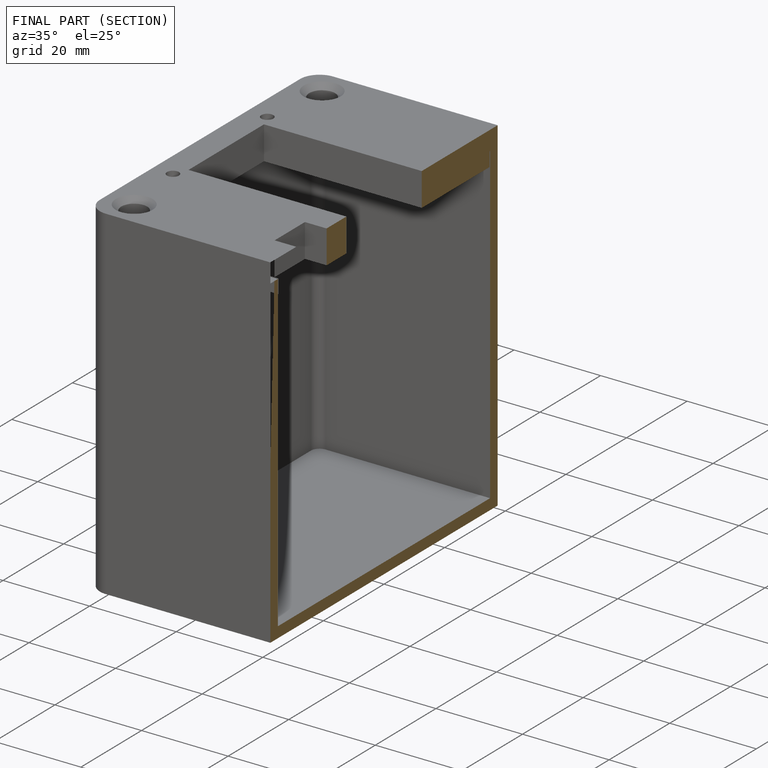
[diagram: finished part — half-section view (interior)]
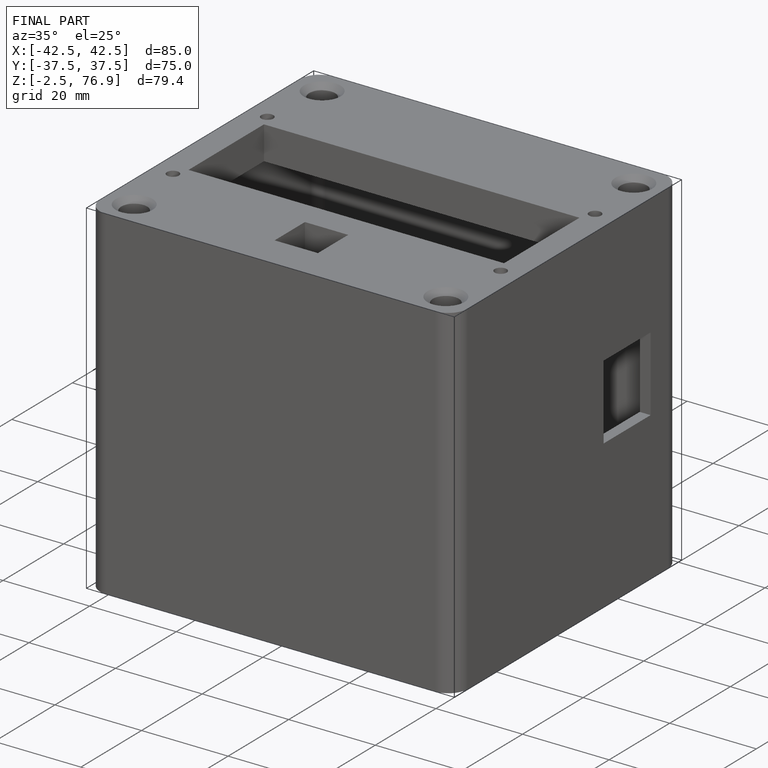
[diagram: finished part — iso view with bounding-box wireframe]
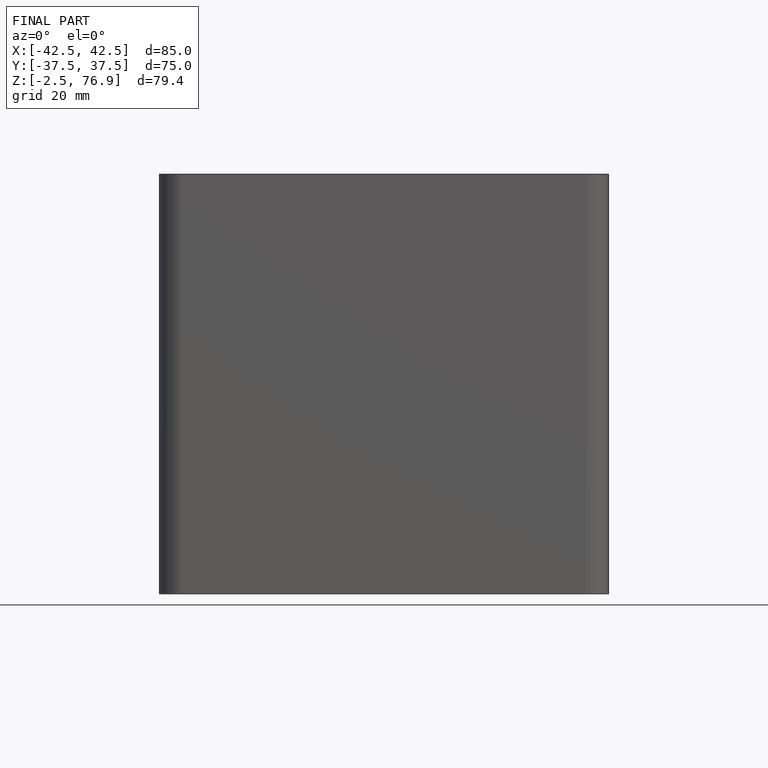
[diagram: finished part — front view with bounding-box wireframe]
